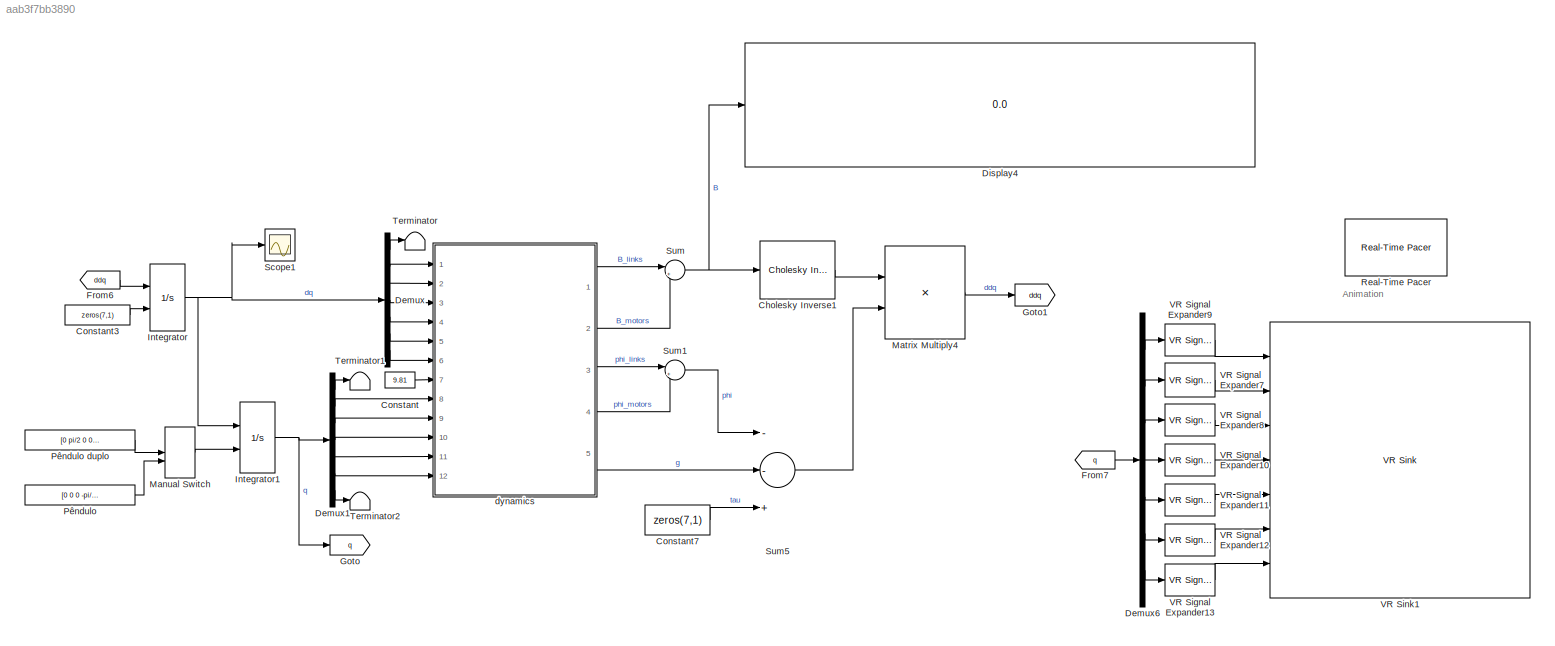
MODEL slx_aab3f7bb3890
KIND model
CONFIG AbsTol = auto
CONFIG EnableMultiTasking = off
CONFIG FixedStep = auto
CONFIG MaxStep = auto
CONFIG MinStep = auto
CONFIG RelTol = 1e-3
CONFIG SampleTimeConstraint = Unconstrained
CONFIG Solver = VariableStepAuto
CONFIG SolverName = VariableStepAuto
CONFIG StartTime = 0.0
CONFIG StopTime = inf
BLOCK [Reference] Cholesky Inverse1  REF=dspinverses/Cholesky Inverse
  Ports = [1, 1]
  SourceBlock = dspinverses/Cholesky Inverse
  SourceProductBaseCode = DS
  SourceProductName = DSP System Toolbox
  SourceType = Cholesky Inverse
BLOCK [Constant] Constant
  SampleTime = -1
  Value = 9.81
BLOCK [Constant] Constant3
  SampleTime = -1
  Value = zeros(7,1)
BLOCK [Constant] Constant7
  SampleTime = -1
  Value = zeros(7,1)
BLOCK [Demux] Demux
  DisplayOption = bar
  Outputs = 7
  Ports = [1, 7]
BLOCK [Demux] Demux1
  DisplayOption = bar
  Outputs = 7
  Ports = [1, 7]
BLOCK [Demux] Demux6
  DisplayOption = bar
  Outputs = 7
  Ports = [1, 7]
BLOCK [Display] Display4
  Decimation = 1
  Ports = [1]
BLOCK [From] From6
  GotoTag = ddq
BLOCK [From] From7
  GotoTag = q
BLOCK [Goto] Goto
  GotoTag = q
BLOCK [Goto] Goto1
  GotoTag = ddq
BLOCK [Integrator] Integrator
  InitialConditionSource = external
  Ports = [2, 1]
BLOCK [Integrator] Integrator1
  InitialConditionSource = external
  Ports = [2, 1]
BLOCK [ManualSwitch] Manual Switch
BLOCK [Product] Matrix Multiply4
  InputSameDT = off
  Multiplication = Matrix(*)
  OutDataTypeStr = Inherit: Inherit via internal rule
  Ports = [2, 1]
  RndMeth = Floor
  SaturateOnIntegerOverflow = off
BLOCK [Constant] Pêndulo
  SampleTime = -1
  Value = [0 0 0 -pi/2 0 0 0]
BLOCK [Constant] Pêndulo duplo
  SampleTime = -1
  Value = [0 pi/2 0 0 0 0 0]
BLOCK [Reference] Real-Time Pacer  REF=realtime_pacer_lib/Real-Time Pacer
  Ports = []
  SourceBlock = realtime_pacer_lib/Real-Time Pacer
  SourceType = RealTime_Pacer
BLOCK [Scope] Scope1
  Floating = off
  NumInputPorts = 1
  Ports = [1]
  ScopeSpecificationString = Simulink.scopes.TimeScopeBlockCfg('CurrentConfiguration', extmgr.ConfigurationSet(extmgr.Configuration('Core','General UI',true),extmgr.Configuration('Core','Source UI',true),extmgr.Configuration('Sources','WiredSimulink',true,'DataLoggingVariableName','ScopeData1'),extmgr.Configuration('Visuals','Time Domain',true,'SerializedDisplays',{struct('MinYLimReal','-6.23607','MaxYLimReal','6.23227','YLab...<+1430ch>
BLOCK [Sum] Sum
  IconShape = round
  InputSameDT = off
  Inputs = |++
  OutDataTypeStr = Inherit: Inherit via internal rule
  Ports = [2, 1]
  SaturateOnIntegerOverflow = off
BLOCK [Sum] Sum1
  IconShape = round
  InputSameDT = off
  Inputs = |++
  OutDataTypeStr = Inherit: Inherit via internal rule
  Ports = [2, 1]
  SaturateOnIntegerOverflow = off
BLOCK [Sum] Sum5
  InputSameDT = off
  Inputs = --+
  OutDataTypeStr = Inherit: Inherit via internal rule
  Ports = [3, 1]
  SaturateOnIntegerOverflow = off
BLOCK [Terminator] Terminator
BLOCK [Terminator] Terminator1
BLOCK [Terminator] Terminator2
BLOCK [Reference] VR Signal Expander10  REF=vrlib/VR Signal Expander
  Ports = [1, 1]
  SourceBlock = vrlib/VR Signal Expander
  SourceProductBaseCode = VR
  SourceProductName = Simulink 3D Animation
  SourceType = VR Signal Expander
BLOCK [Reference] VR Signal Expander11  REF=vrlib/VR Signal Expander
  Ports = [1, 1]
  SourceBlock = vrlib/VR Signal Expander
  SourceProductBaseCode = VR
  SourceProductName = Simulink 3D Animation
  SourceType = VR Signal Expander
BLOCK [Reference] VR Signal Expander12  REF=vrlib/VR Signal Expander
  Ports = [1, 1]
  SourceBlock = vrlib/VR Signal Expander
  SourceProductBaseCode = VR
  SourceProductName = Simulink 3D Animation
  SourceType = VR Signal Expander
BLOCK [Reference] VR Signal Expander13  REF=vrlib/VR Signal Expander
  Ports = [1, 1]
  SourceBlock = vrlib/VR Signal Expander
  SourceProductBaseCode = VR
  SourceProductName = Simulink 3D Animation
  SourceType = VR Signal Expander
BLOCK [Reference] VR Signal Expander7  REF=vrlib/VR Signal Expander
  Ports = [1, 1]
  SourceBlock = vrlib/VR Signal Expander
  SourceProductBaseCode = VR
  SourceProductName = Simulink 3D Animation
  SourceType = VR Signal Expander
BLOCK [Reference] VR Signal Expander8  REF=vrlib/VR Signal Expander
  Ports = [1, 1]
  SourceBlock = vrlib/VR Signal Expander
  SourceProductBaseCode = VR
  SourceProductName = Simulink 3D Animation
  SourceType = VR Signal Expander
BLOCK [Reference] VR Signal Expander9  REF=vrlib/VR Signal Expander
  Ports = [1, 1]
  SourceBlock = vrlib/VR Signal Expander
  SourceProductBaseCode = VR
  SourceProductName = Simulink 3D Animation
  SourceType = VR Signal Expander
BLOCK [Reference] VR Sink1  REF=vrlib/VR Sink
  InstantiateOnLoad = on
  Ports = [7]
  SourceBlock = vrlib/VR Sink
  SourceProductBaseCode = VR
  SourceProductName = Simulink 3D Animation
  SourceType = Virtual Reality Sink
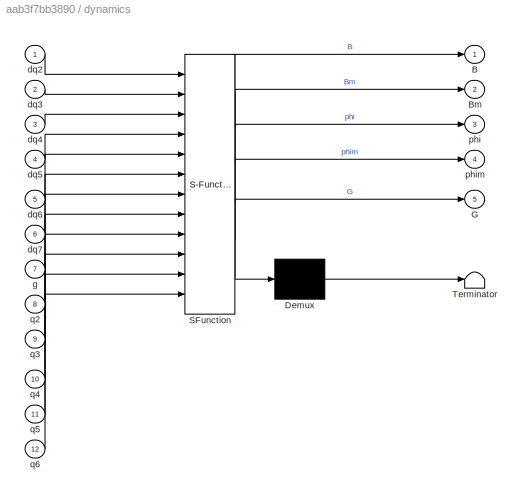
BLOCK [SubSystem] dynamics
  ErrorFcn = Stateflow.Translate.translate
  PermitHierarchicalResolution = ExplicitOnly
  Ports = [12, 5]
  RequestExecContextInheritance = off
  SFBlockType = MATLAB Function
  TreatAsAtomicUnit = on
BLOCK [Demux] dynamics/ Demux 
  Outputs = 1
  Ports = [1, 1]
BLOCK [S-Function] dynamics/ SFunction 
  EnableBusSupport = on
  FunctionName = sf_sfun
  PortCounts = [12 6]
  Ports = [12, 6]
  SFcnIsStateOwnerBlock = off
  SFunctionDeploymentMode = off
  Tag = Stateflow S-Function KR6_dynamics 2
BLOCK [Terminator] dynamics/ Terminator 
BLOCK [Outport] dynamics/B
  IconDisplay = Port number
BLOCK [Outport] dynamics/Bm
  IconDisplay = Port number
  Port = 2
BLOCK [Outport] dynamics/G
  IconDisplay = Port number
  Port = 5
BLOCK [Inport] dynamics/dq2
  IconDisplay = Port number
BLOCK [Inport] dynamics/dq3
  IconDisplay = Port number
  Port = 2
BLOCK [Inport] dynamics/dq4
  IconDisplay = Port number
  Port = 3
BLOCK [Inport] dynamics/dq5
  IconDisplay = Port number
  Port = 4
BLOCK [Inport] dynamics/dq6
  IconDisplay = Port number
  Port = 5
BLOCK [Inport] dynamics/dq7
  IconDisplay = Port number
  Port = 6
BLOCK [Inport] dynamics/g
  IconDisplay = Port number
  Port = 7
BLOCK [Outport] dynamics/phi
  IconDisplay = Port number
  Port = 3
BLOCK [Outport] dynamics/phim
  IconDisplay = Port number
  Port = 4
BLOCK [Inport] dynamics/q2
  IconDisplay = Port number
  Port = 8
BLOCK [Inport] dynamics/q3
  IconDisplay = Port number
  Port = 9
BLOCK [Inport] dynamics/q4
  IconDisplay = Port number
  Port = 10
BLOCK [Inport] dynamics/q5
  IconDisplay = Port number
  Port = 11
BLOCK [Inport] dynamics/q6
  IconDisplay = Port number
  Port = 12
ANNOTATION (root): Animation
LINE Cholesky Inverse1:1 -> Matrix Multiply4:1
LINE Constant3:1 -> Integrator:2
LINE Constant7:1 -> Sum5:3
LINE Constant:1 -> dynamics:7
LINE Demux1:1 -> Terminator1:1
LINE Demux1:2 -> dynamics:8
LINE Demux1:3 -> dynamics:9
LINE Demux1:4 -> dynamics:10
LINE Demux1:5 -> dynamics:11
LINE Demux1:6 -> dynamics:12
LINE Demux1:7 -> Terminator2:1
LINE Demux6:1 -> VR Signal Expander9:1
LINE Demux6:2 -> VR Signal Expander7:1
LINE Demux6:3 -> VR Signal Expander8:1
LINE Demux6:4 -> VR Signal Expander10:1
LINE Demux6:5 -> VR Signal Expander11:1
LINE Demux6:6 -> VR Signal Expander12:1
LINE Demux6:7 -> VR Signal Expander13:1
LINE Demux:1 -> Terminator:1
LINE Demux:2 -> dynamics:1
LINE Demux:3 -> dynamics:2
LINE Demux:4 -> dynamics:3
LINE Demux:5 -> dynamics:4
LINE Demux:6 -> dynamics:5
LINE Demux:7 -> dynamics:6
LINE From6:1 -> Integrator:1
LINE From7:1 -> Demux6:1
NET Integrator1:1 -> Demux1:1, Goto:1
NET Integrator:1 -> Demux:1, Integrator1:1, Scope1:1
LINE Manual Switch:1 -> Integrator1:2
LINE Matrix Multiply4:1 -> Goto1:1
LINE Pêndulo duplo:1 -> Manual Switch:1
LINE Pêndulo:1 -> Manual Switch:2
LINE Sum1:1 -> Sum5:1
LINE Sum5:1 -> Matrix Multiply4:2
NET Sum:1 -> Cholesky Inverse1:1, Display4:1
LINE VR Signal Expander10:1 -> VR Sink1:4
LINE VR Signal Expander11:1 -> VR Sink1:5
LINE VR Signal Expander12:1 -> VR Sink1:6
LINE VR Signal Expander13:1 -> VR Sink1:7
LINE VR Signal Expander7:1 -> VR Sink1:2
LINE VR Signal Expander8:1 -> VR Sink1:3
LINE VR Signal Expander9:1 -> VR Sink1:1
LINE dynamics:1 -> Sum:1
LINE dynamics:2 -> Sum:2
LINE dynamics:3 -> Sum1:1
LINE dynamics:4 -> Sum1:2
LINE dynamics:5 -> Sum5:2
note: NET lines group one-source signal fan-out (src -> all destinations, sorted); 1:1 wires keep LINE
CHART dynamics states=1 transitions=1
  STATE_LABEL 'eML_blk_kernel()'
  STATE_LABEL 'SCRIPT:\nfunction [B,Bm,phi,phim,G] = dynamics(dq2,dq3,dq4,dq5,dq6,dq7,g,q2,q3,q4,q5,q6)\n%#codegen\n\n%    This function was generated by the Symbolic Math Toolbox version 8.1.\n%    27-May-2020 20:53:49\n\nt2 = cos(q2);\nt3 = sin(q2);\nt4 = sin(q5);\nt5 = cos(q3);\nt6 = cos(q4);\nt7 = sin(q3);\nt8 = sin(q4);\nt9 = cos(q5);\nt10 = cos(q6);\nt11 = sin(q6);\nt12 = t7.*t8.*1.4164748e7;\nt13 = t4.*t5.*t8.*1.79145e5;\nt...<+3608ch>'
